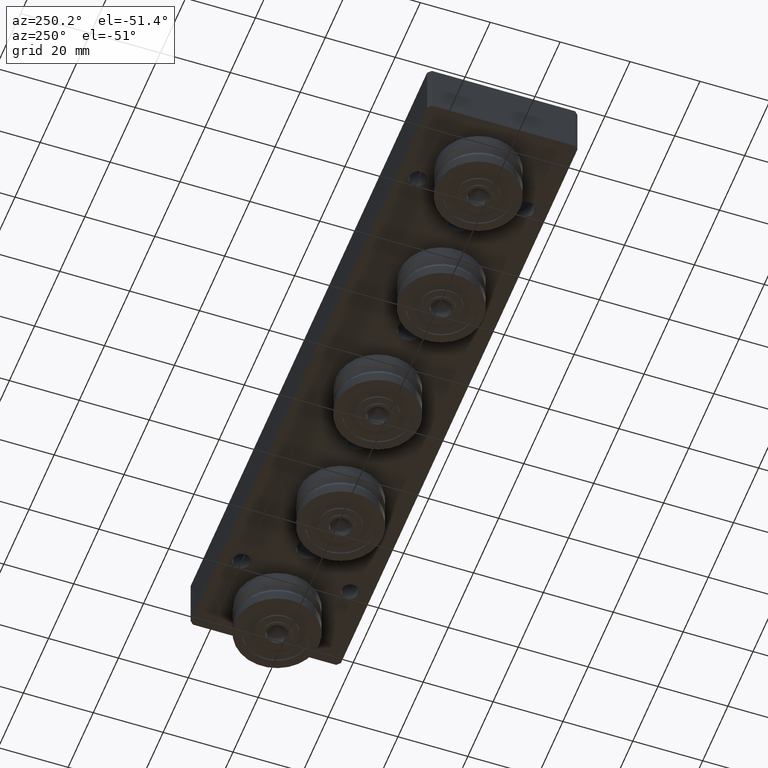
[diagram: clean part render]
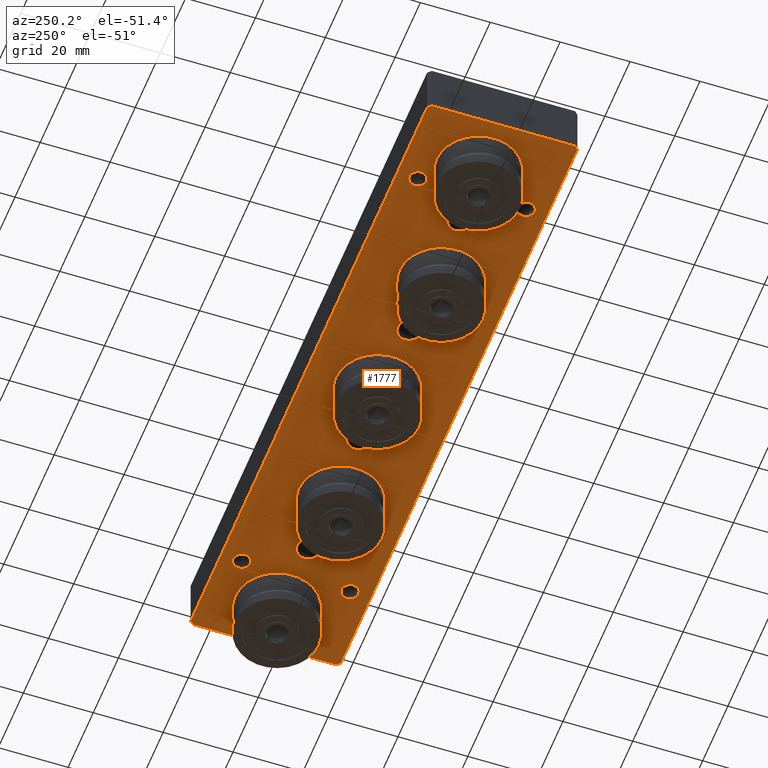
[diagram: same view with one face highlighted and labeled with its STEP entity id]
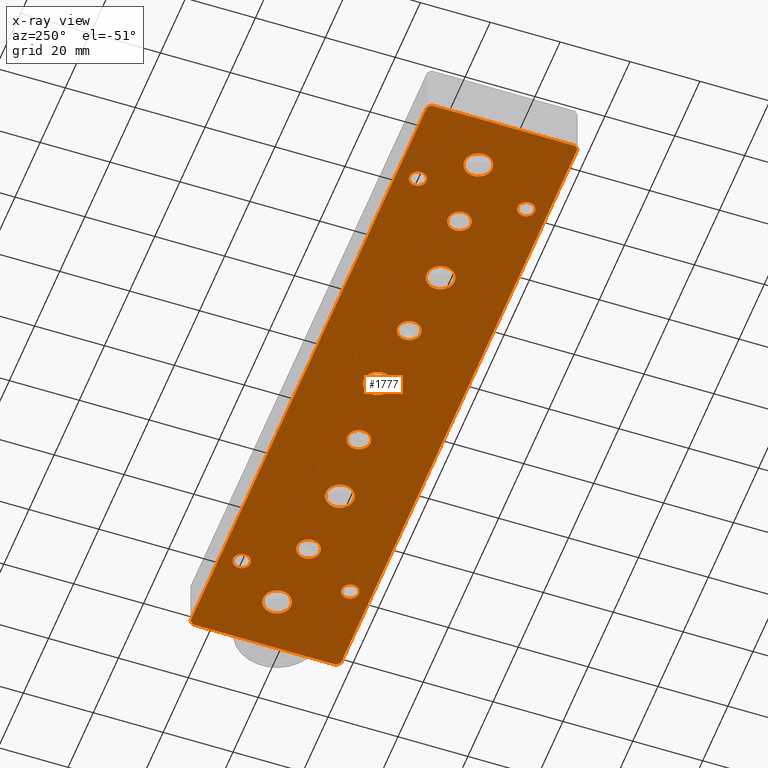
[diagram: x-ray of the same camera — body ghosted, the highlighted face saturated]
A machine part, auxiliary view. The second image highlights one B-rep face of the part: STEP entity #1777.
The next image is the same camera in x-ray: the body ghosted, the highlighted face saturated — about 0% of this face is hidden behind the body in this view.
In plain terms, the highlighted planar face has unit normal (0, 0, -1).
Its self-contained STEP definition (entity closure, byte-faithful):
#188=FACE_BOUND('',#460,.T.);
#189=FACE_BOUND('',#461,.T.);
#190=FACE_BOUND('',#462,.T.);
#191=FACE_BOUND('',#463,.T.);
#192=FACE_BOUND('',#464,.T.);
#193=FACE_BOUND('',#465,.T.);
#194=FACE_BOUND('',#466,.T.);
#195=FACE_BOUND('',#467,.T.);
#196=FACE_BOUND('',#468,.T.);
#197=FACE_BOUND('',#469,.T.);
#198=FACE_BOUND('',#470,.T.);
#199=FACE_BOUND('',#471,.T.);
#200=FACE_BOUND('',#472,.T.);
#243=CIRCLE('',#2040,2.4585);
#244=CIRCLE('',#2041,2.4585);
#245=CIRCLE('',#2042,2.4585);
#246=CIRCLE('',#2043,2.4585);
#247=CIRCLE('',#2044,3.3235);
#248=CIRCLE('',#2045,3.3235);
#249=CIRCLE('',#2046,3.3235);
#250=CIRCLE('',#2047,3.3235);
#251=CIRCLE('',#2048,4.);
#252=CIRCLE('',#2049,4.);
#253=CIRCLE('',#2050,4.);
#254=CIRCLE('',#2051,4.);
#255=CIRCLE('',#2052,4.);
#347=FACE_OUTER_BOUND('',#459,.T.);
#459=EDGE_LOOP('',(#1263,#1264,#1265,#1266,#1267,#1268,#1269,#1270));
#460=EDGE_LOOP('',(#1271));
#461=EDGE_LOOP('',(#1272));
#462=EDGE_LOOP('',(#1273));
#463=EDGE_LOOP('',(#1274));
#464=EDGE_LOOP('',(#1275));
#465=EDGE_LOOP('',(#1276));
#466=EDGE_LOOP('',(#1277));
#467=EDGE_LOOP('',(#1278));
#468=EDGE_LOOP('',(#1279));
#469=EDGE_LOOP('',(#1280));
#470=EDGE_LOOP('',(#1281));
#471=EDGE_LOOP('',(#1282));
#472=EDGE_LOOP('',(#1283));
#626=LINE('',#2901,#748);
#628=LINE('',#2905,#750);
#631=LINE('',#2911,#753);
#632=LINE('',#2913,#754);
#633=LINE('',#2915,#755);
#634=LINE('',#2917,#756);
#635=LINE('',#2919,#757);
#636=LINE('',#2920,#758);
#748=VECTOR('',#2288,10.);
#750=VECTOR('',#2292,10.);
#753=VECTOR('',#2297,10.);
#754=VECTOR('',#2298,10.);
#755=VECTOR('',#2299,10.);
#756=VECTOR('',#2300,10.);
#757=VECTOR('',#2301,10.);
#758=VECTOR('',#2302,10.);
#870=VERTEX_POINT('',#2898);
#871=VERTEX_POINT('',#2900);
#872=VERTEX_POINT('',#2904);
#874=VERTEX_POINT('',#2910);
#875=VERTEX_POINT('',#2912);
#876=VERTEX_POINT('',#2914);
#877=VERTEX_POINT('',#2916);
#878=VERTEX_POINT('',#2918);
#879=VERTEX_POINT('',#2921);
#880=VERTEX_POINT('',#2923);
#881=VERTEX_POINT('',#2925);
#882=VERTEX_POINT('',#2927);
#883=VERTEX_POINT('',#2929);
#884=VERTEX_POINT('',#2931);
#885=VERTEX_POINT('',#2933);
#886=VERTEX_POINT('',#2935);
#887=VERTEX_POINT('',#2937);
#888=VERTEX_POINT('',#2939);
#889=VERTEX_POINT('',#2941);
#890=VERTEX_POINT('',#2943);
#891=VERTEX_POINT('',#2945);
#1026=EDGE_CURVE('',#870,#871,#626,.T.);
#1028=EDGE_CURVE('',#872,#871,#628,.T.);
#1031=EDGE_CURVE('',#870,#874,#631,.T.);
#1032=EDGE_CURVE('',#875,#874,#632,.T.);
#1033=EDGE_CURVE('',#875,#876,#633,.T.);
#1034=EDGE_CURVE('',#877,#876,#634,.T.);
#1035=EDGE_CURVE('',#877,#878,#635,.T.);
#1036=EDGE_CURVE('',#872,#878,#636,.T.);
#1037=EDGE_CURVE('',#879,#879,#243,.T.);
#1038=EDGE_CURVE('',#880,#880,#244,.T.);
#1039=EDGE_CURVE('',#881,#881,#245,.T.);
#1040=EDGE_CURVE('',#882,#882,#246,.T.);
#1041=EDGE_CURVE('',#883,#883,#247,.T.);
#1042=EDGE_CURVE('',#884,#884,#248,.T.);
#1043=EDGE_CURVE('',#885,#885,#249,.T.);
#1044=EDGE_CURVE('',#886,#886,#250,.T.);
#1045=EDGE_CURVE('',#887,#887,#251,.T.);
#1046=EDGE_CURVE('',#888,#888,#252,.T.);
#1047=EDGE_CURVE('',#889,#889,#253,.T.);
#1048=EDGE_CURVE('',#890,#890,#254,.T.);
#1049=EDGE_CURVE('',#891,#891,#255,.T.);
#1263=ORIENTED_EDGE('',*,*,#1026,.F.);
#1264=ORIENTED_EDGE('',*,*,#1031,.T.);
#1265=ORIENTED_EDGE('',*,*,#1032,.F.);
#1266=ORIENTED_EDGE('',*,*,#1033,.T.);
#1267=ORIENTED_EDGE('',*,*,#1034,.F.);
#1268=ORIENTED_EDGE('',*,*,#1035,.T.);
#1269=ORIENTED_EDGE('',*,*,#1036,.F.);
#1270=ORIENTED_EDGE('',*,*,#1028,.T.);
#1271=ORIENTED_EDGE('',*,*,#1037,.T.);
#1272=ORIENTED_EDGE('',*,*,#1038,.T.);
#1273=ORIENTED_EDGE('',*,*,#1039,.T.);
#1274=ORIENTED_EDGE('',*,*,#1040,.T.);
#1275=ORIENTED_EDGE('',*,*,#1041,.T.);
#1276=ORIENTED_EDGE('',*,*,#1042,.T.);
#1277=ORIENTED_EDGE('',*,*,#1043,.T.);
#1278=ORIENTED_EDGE('',*,*,#1044,.T.);
#1279=ORIENTED_EDGE('',*,*,#1045,.T.);
#1280=ORIENTED_EDGE('',*,*,#1046,.T.);
#1281=ORIENTED_EDGE('',*,*,#1047,.T.);
#1282=ORIENTED_EDGE('',*,*,#1048,.T.);
#1283=ORIENTED_EDGE('',*,*,#1049,.T.);
#1719=PLANE('',#2039);
#1777=ADVANCED_FACE('',(#347,#188,#189,#190,#191,#192,#193,#194,#195,#196,
#197,#198,#199,#200),#1719,.T.);
#2039=AXIS2_PLACEMENT_3D('',#2909,#2295,#2296);
#2040=AXIS2_PLACEMENT_3D('',#2922,#2303,#2304);
#2041=AXIS2_PLACEMENT_3D('',#2924,#2305,#2306);
#2042=AXIS2_PLACEMENT_3D('',#2926,#2307,#2308);
#2043=AXIS2_PLACEMENT_3D('',#2928,#2309,#2310);
#2044=AXIS2_PLACEMENT_3D('',#2930,#2311,#2312);
#2045=AXIS2_PLACEMENT_3D('',#2932,#2313,#2314);
#2046=AXIS2_PLACEMENT_3D('',#2934,#2315,#2316);
#2047=AXIS2_PLACEMENT_3D('',#2936,#2317,#2318);
#2048=AXIS2_PLACEMENT_3D('',#2938,#2319,#2320);
#2049=AXIS2_PLACEMENT_3D('',#2940,#2321,#2322);
#2050=AXIS2_PLACEMENT_3D('',#2942,#2323,#2324);
#2051=AXIS2_PLACEMENT_3D('',#2944,#2325,#2326);
#2052=AXIS2_PLACEMENT_3D('',#2946,#2327,#2328);
#2288=DIRECTION('',(-0.707106781186552,-0.707106781186543,0.));
#2292=DIRECTION('',(0.,1.,0.));
#2295=DIRECTION('center_axis',(0.,0.,-1.));
#2296=DIRECTION('ref_axis',(-1.,0.,0.));
#2297=DIRECTION('',(1.,0.,0.));
#2298=DIRECTION('',(-0.707106781186552,0.707106781186543,0.));
#2299=DIRECTION('',(0.,-1.,0.));
#2300=DIRECTION('',(0.707106781186552,0.707106781186543,0.));
#2301=DIRECTION('',(-1.,0.,0.));
#2302=DIRECTION('',(0.707106781186546,-0.707106781186549,0.));
#2303=DIRECTION('center_axis',(0.,0.,1.));
#2304=DIRECTION('ref_axis',(1.,0.,0.));
#2305=DIRECTION('center_axis',(0.,0.,1.));
#2306=DIRECTION('ref_axis',(1.,0.,0.));
#2307=DIRECTION('center_axis',(0.,0.,1.));
#2308=DIRECTION('ref_axis',(1.,0.,0.));
#2309=DIRECTION('center_axis',(0.,0.,1.));
#2310=DIRECTION('ref_axis',(1.,0.,0.));
#2311=DIRECTION('center_axis',(0.,0.,1.));
#2312=DIRECTION('ref_axis',(1.,0.,0.));
#2313=DIRECTION('center_axis',(0.,0.,1.));
#2314=DIRECTION('ref_axis',(1.,0.,0.));
#2315=DIRECTION('center_axis',(0.,0.,1.));
#2316=DIRECTION('ref_axis',(1.,0.,0.));
#2317=DIRECTION('center_axis',(0.,0.,1.));
#2318=DIRECTION('ref_axis',(1.,0.,0.));
#2319=DIRECTION('center_axis',(0.,0.,1.));
#2320=DIRECTION('ref_axis',(1.,0.,0.));
#2321=DIRECTION('center_axis',(0.,0.,1.));
#2322=DIRECTION('ref_axis',(1.,0.,0.));
#2323=DIRECTION('center_axis',(0.,0.,1.));
#2324=DIRECTION('ref_axis',(1.,0.,0.));
#2325=DIRECTION('center_axis',(0.,0.,1.));
#2326=DIRECTION('ref_axis',(1.,0.,0.));
#2327=DIRECTION('center_axis',(0.,0.,1.));
#2328=DIRECTION('ref_axis',(1.,0.,0.));
#2898=CARTESIAN_POINT('',(-94.,21.5,-7.5));
#2900=CARTESIAN_POINT('',(-95.,20.5,-7.5));
#2901=CARTESIAN_POINT('',(-76.1249999999997,39.3750000000001,-7.5));
#2904=CARTESIAN_POINT('',(-95.,-20.5,-7.5));
#2905=CARTESIAN_POINT('',(-95.,21.5,-7.5));
#2909=CARTESIAN_POINT('Origin',(0.,0.,-7.5));
#2910=CARTESIAN_POINT('',(94.,21.5,-7.5));
#2911=CARTESIAN_POINT('',(95.,21.5,-7.5));
#2912=CARTESIAN_POINT('',(95.,20.5,-7.5));
#2913=CARTESIAN_POINT('',(76.1249999999997,39.3750000000001,-7.5));
#2914=CARTESIAN_POINT('',(95.,-20.5,-7.5));
#2915=CARTESIAN_POINT('',(95.,-21.5,-7.5));
#2916=CARTESIAN_POINT('',(94.,-21.5,-7.5));
#2917=CARTESIAN_POINT('',(76.1249999999997,-39.3750000000001,-7.5));
#2918=CARTESIAN_POINT('',(-94.,-21.5,-7.5));
#2919=CARTESIAN_POINT('',(-95.,-21.5,-7.5));
#2920=CARTESIAN_POINT('',(-76.1250000000001,-39.375,-7.5));
#2921=CARTESIAN_POINT('',(67.5415,15.5,-7.5));
#2922=CARTESIAN_POINT('Origin',(70.,15.5,-7.5));
#2923=CARTESIAN_POINT('',(-72.4585,15.5,-7.5));
#2924=CARTESIAN_POINT('Origin',(-70.,15.5,-7.5));
#2925=CARTESIAN_POINT('',(-72.4585000000001,-15.5,-7.5));
#2926=CARTESIAN_POINT('Origin',(-70.0000000000001,-15.5,-7.5));
#2927=CARTESIAN_POINT('',(67.5415000000001,-15.5,-7.5));
#2928=CARTESIAN_POINT('Origin',(70.0000000000001,-15.5,-7.5));
#2929=CARTESIAN_POINT('',(16.6765,9.35593078606095E-15,-7.5));
#2930=CARTESIAN_POINT('Origin',(20.,9.76294214975757E-15,-7.5));
#2931=CARTESIAN_POINT('',(-63.3235,-4.07011363696623E-16,-7.5));
#2932=CARTESIAN_POINT('Origin',(-60.,0.,-7.5));
#2933=CARTESIAN_POINT('',(-23.3235,-1.01699535134542E-14,-7.5));
#2934=CARTESIAN_POINT('Origin',(-20.,-9.76294214975757E-15,-7.5));
#2935=CARTESIAN_POINT('',(56.6765,-4.07011363696623E-16,-7.5));
#2936=CARTESIAN_POINT('Origin',(60.,0.,-7.5));
#2937=CARTESIAN_POINT('',(36.,-1.8,-7.5));
#2938=CARTESIAN_POINT('Origin',(40.,-1.8,-7.5));
#2939=CARTESIAN_POINT('',(-44.,-1.8,-7.5));
#2940=CARTESIAN_POINT('Origin',(-40.,-1.8,-7.5));
#2941=CARTESIAN_POINT('',(-84.,1.8,-7.5));
#2942=CARTESIAN_POINT('Origin',(-80.,1.8,-7.5));
#2943=CARTESIAN_POINT('',(-4.,1.8,-7.5));
#2944=CARTESIAN_POINT('Origin',(0.,1.8,-7.5));
#2945=CARTESIAN_POINT('',(76.,1.8,-7.5));
#2946=CARTESIAN_POINT('Origin',(80.,1.8,-7.5));